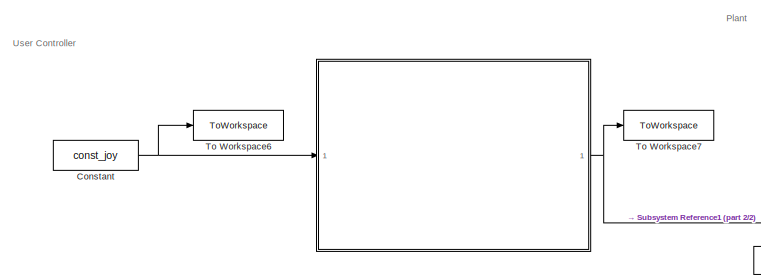
[diagram: root canvas - part 1/2, middle left region]
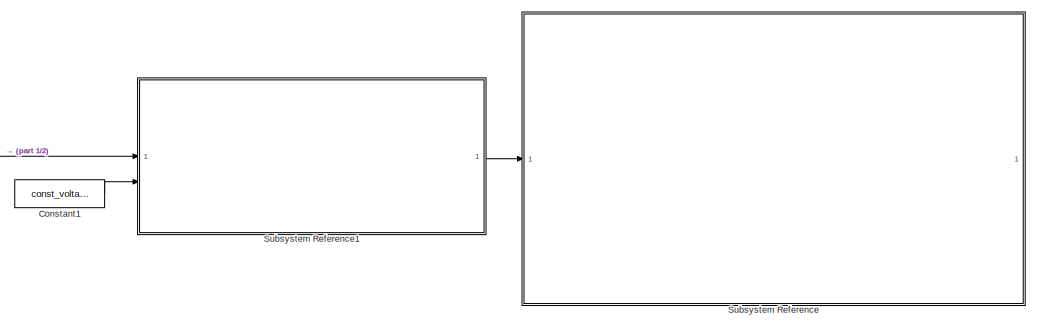
[diagram: root canvas - part 2/2, right side, full height]
MODEL slx_77ea0094043d
KIND model
CONFIG AbsTol = auto
CONFIG EnableMultiTasking = off
CONFIG FixedStep = dt_sim
CONFIG MaxStep = auto
CONFIG MinStep = auto
CONFIG RelTol = 1e-3
CONFIG SampleTimeConstraint = Unconstrained
CONFIG SolverName = FixedStepAuto
CONFIG StartTime = 0.0
CONFIG StopTime = tspan
BLOCK [SubSystem]  
  ReferencedSubsystem = joystick_to_pwm
BLOCK [Constant] Constant
  Value = const_joy
BLOCK [Constant] Constant1
  Value = const_voltage
BLOCK [SubSystem] Subsystem Reference
  ReferencedSubsystem = plant
BLOCK [SubSystem] Subsystem Reference1
  ReferencedSubsystem = pwm_to_force
BLOCK [ToWorkspace] To Workspace6
  FixptAsFi = on
  MaxDataPoints = inf
  SampleTime = dt_control
  SaveFormat = Timeseries
  VariableName = joy
BLOCK [ToWorkspace] To Workspace7
  FixptAsFi = on
  MaxDataPoints = inf
  SampleTime = dt_control
  SaveFormat = Timeseries
  VariableName = pwm_cmd
ANNOTATION (root): Plant
ANNOTATION (root): User Controller
NET  :1 -> Subsystem Reference1:1, To Workspace7:1
LINE Constant1:1 -> Subsystem Reference1:2
NET Constant:1 ->  :1, To Workspace6:1
LINE Subsystem Reference1:1 -> Subsystem Reference:1
note: NET lines group one-source signal fan-out (src -> all destinations, sorted); 1:1 wires keep LINE
